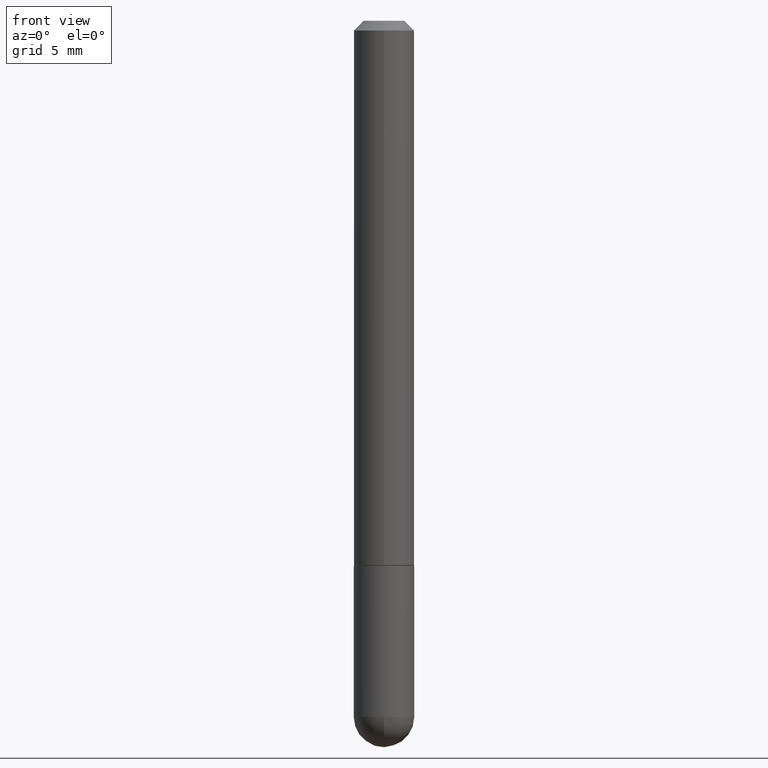
[diagram: clean part render]
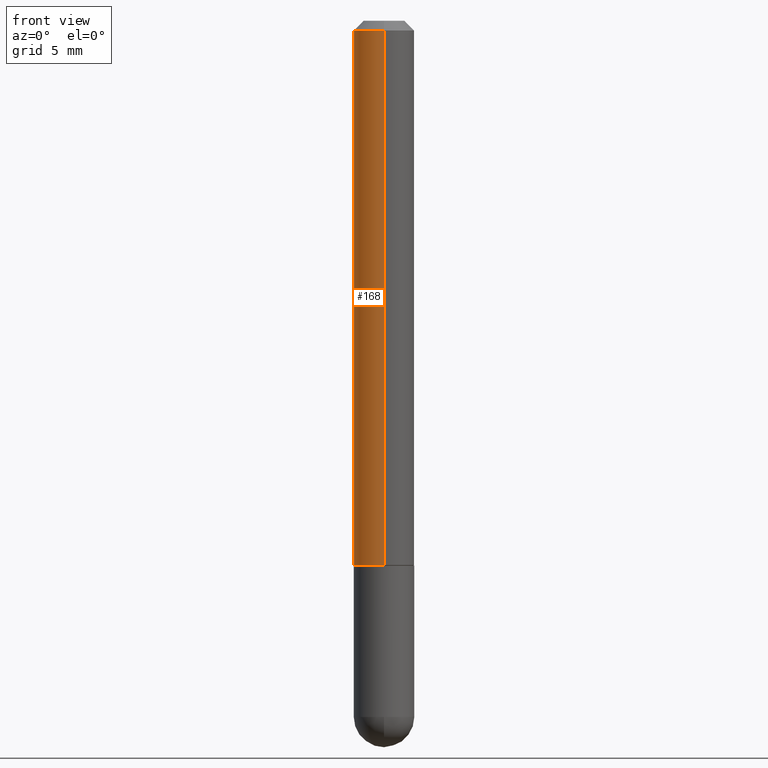
[diagram: same view with one face highlighted and labeled with its STEP entity id]
A machine part, front view. The second image highlights one B-rep face of the part: STEP entity #168.
In plain terms, the highlighted cylindrical surface (edge-blend (fillet) strip) has radius 1.5875 mm, axis along (-0, 0, 1).
Its self-contained STEP definition (entity closure, byte-faithful):
#2 = CARTESIAN_POINT ( 'NONE',  ( 2.726346520416373484E-29, -3.956446415733188311E-15, -1.124000000000000110 ) ) ;
#4 = DIRECTION ( 'NONE',  ( -2.425575196099976193E-29, 3.519970120759064308E-15, 1.000000000000000000 ) ) ;
#15 = ORIENTED_EDGE ( 'NONE', *, *, #84, .T. ) ;
#17 = AXIS2_PLACEMENT_3D ( 'NONE', #310, #4, #128 ) ;
#23 = ORIENTED_EDGE ( 'NONE', *, *, #412, .T. ) ;
#33 = CARTESIAN_POINT ( 'NONE',  ( 4.440892098500628134E-16, 0.06250000000000002776, -2.199981325474416425E-16 ) ) ;
#44 = VECTOR ( 'NONE', #314, 39.37007874015748143 ) ;
#72 = EDGE_CURVE ( 'NONE', #173, #338, #195, .T. ) ;
#80 = EDGE_LOOP ( 'NONE', ( #112, #15, #23, #278 ) ) ;
#84 = EDGE_CURVE ( 'NONE', #244, #240, #223, .T. ) ;
#90 = EDGE_CURVE ( 'NONE', #244, #173, #121, .T. ) ;
#112 = ORIENTED_EDGE ( 'NONE', *, *, #90, .F. ) ;
#121 = LINE ( 'NONE', #33, #44 ) ;
#128 = DIRECTION ( 'NONE',  ( -6.982962677686265922E-15, -1.000000000000000000, 3.551402391763545142E-15 ) ) ;
#132 = FACE_OUTER_BOUND ( 'NONE', #80, .T. ) ;
#140 = CARTESIAN_POINT ( 'NONE',  ( -4.287811248607198352E-16, -0.06250000000000001388, -0.01999999999999984776 ) ) ;
#150 = VECTOR ( 'NONE', #169, 39.37007874015748143 ) ;
#168 = ADVANCED_FACE ( 'NONE', ( #132 ), #323, .T. ) ;
#169 = DIRECTION ( 'NONE',  ( -2.425575196099975913E-29, 3.519970120759064703E-15, 1.000000000000000000 ) ) ;
#173 = VERTEX_POINT ( 'NONE', #194 ) ;
#194 = CARTESIAN_POINT ( 'NONE',  ( 4.364351673553917187E-16, 0.06249999999999988204, -0.02000000000000029185 ) ) ;
#195 = CIRCLE ( 'NONE', #17, 0.06249999999999995143 ) ;
#197 = CARTESIAN_POINT ( 'NONE',  ( 4.440892098500770129E-16, 0.06249999999999616279, -1.124000000000000332 ) ) ;
#223 = CIRCLE ( 'NONE', #277, 0.06250000000000012490 ) ;
#227 = CARTESIAN_POINT ( 'NONE',  ( -4.364351673553652426E-16, -0.06250000000000406619, -1.123999999999999888 ) ) ;
#233 = DIRECTION ( 'NONE',  ( -2.425575196099976193E-29, 3.519970120759064308E-15, 1.000000000000000000 ) ) ;
#239 = LINE ( 'NONE', #337, #150 ) ;
#240 = VERTEX_POINT ( 'NONE', #227 ) ;
#244 = VERTEX_POINT ( 'NONE', #197 ) ;
#255 = DIRECTION ( 'NONE',  ( -6.982962677686265133E-15, -1.000000000000000000, 4.370956789862812472E-15 ) ) ;
#265 = DIRECTION ( 'NONE',  ( -6.982962677686266711E-15, -1.000000000000000000, 3.519970120759064703E-15 ) ) ;
#277 = AXIS2_PLACEMENT_3D ( 'NONE', #2, #405, #255 ) ;
#278 = ORIENTED_EDGE ( 'NONE', *, *, #72, .F. ) ;
#310 = CARTESIAN_POINT ( 'NONE',  ( 4.851150392199968571E-31, -7.039940241518151938E-17, -0.02000000000000006981 ) ) ;
#314 = DIRECTION ( 'NONE',  ( -2.425575196099975913E-29, 3.519970120759064703E-15, 1.000000000000000000 ) ) ;
#323 = CYLINDRICAL_SURFACE ( 'NONE', #348, 0.06250000000000002776 ) ;
#337 = CARTESIAN_POINT ( 'NONE',  ( -4.364351673553918666E-16, -0.06250000000000002776, 2.199981325474416425E-16 ) ) ;
#338 = VERTEX_POINT ( 'NONE', #140 ) ;
#348 = AXIS2_PLACEMENT_3D ( 'NONE', #353, #233, #265 ) ;
#353 = CARTESIAN_POINT ( 'NONE',  ( 0.000000000000000000, 0.000000000000000000, 0.000000000000000000 ) ) ;
#405 = DIRECTION ( 'NONE',  ( -2.425575196099976193E-29, 3.519970120759064308E-15, 1.000000000000000000 ) ) ;
#412 = EDGE_CURVE ( 'NONE', #240, #338, #239, .T. ) ;